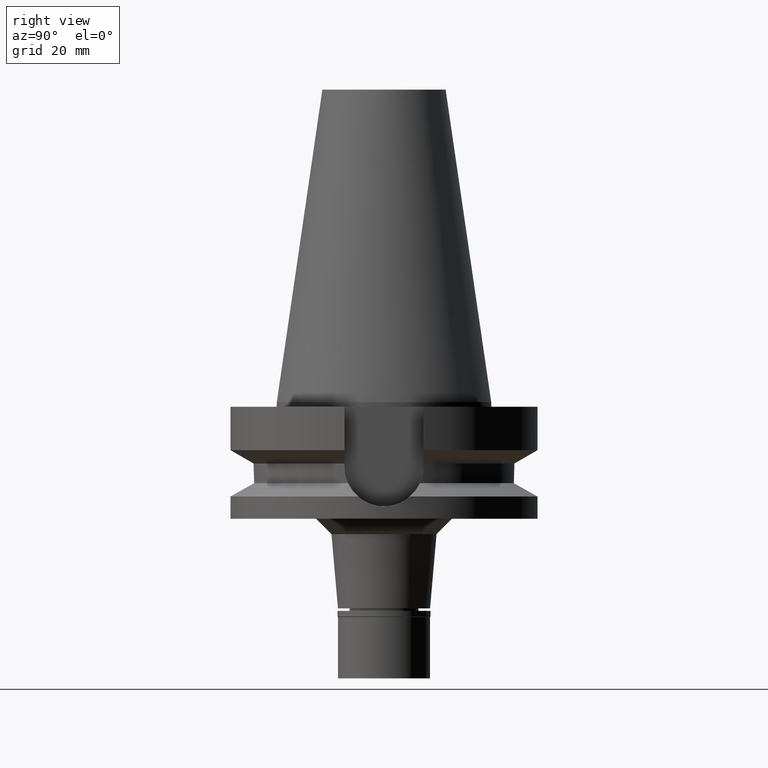
[diagram: clean part render]
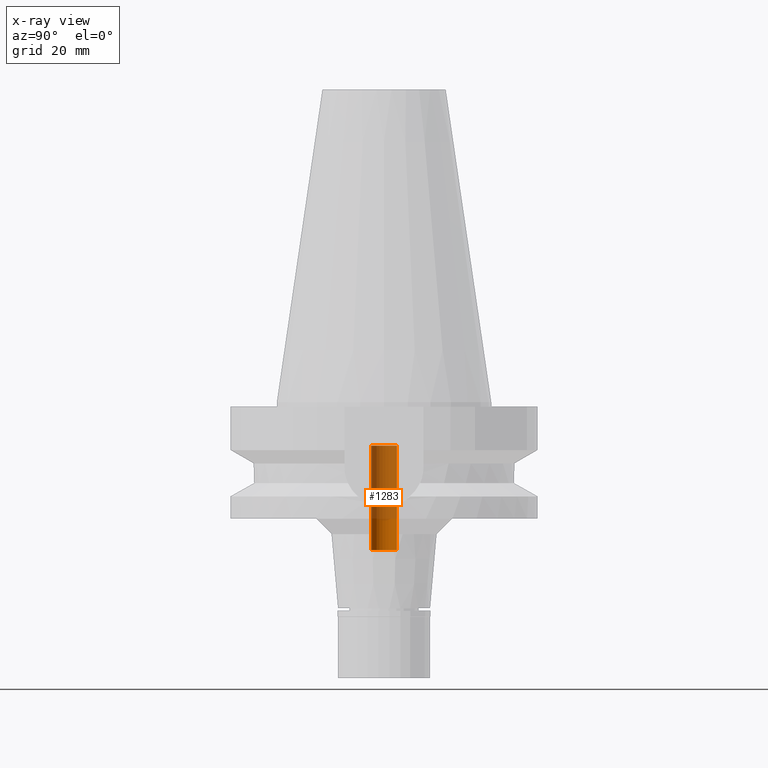
[diagram: x-ray — body ghosted, one internal face saturated and labeled with its STEP entity id]
A machine part, right view, then the same camera in x-ray: the body is ghosted and one INTERNAL B-rep face — a face not visible from any outside direction — is saturated and labeled: STEP entity #1283.
In plain terms, the highlighted cylindrical surface (edge-blend (fillet) strip) has radius 4.2 mm, axis along (0, 0, -1).
Its self-contained STEP definition (entity closure, byte-faithful):
#66 = CARTESIAN_POINT ( 'NONE',  ( 0.0000000000000000000, -4.200000000000000178, -48.30000000000000426 ) ) ;
#153 = VERTEX_POINT ( 'NONE', #1880 ) ;
#161 = DIRECTION ( 'NONE',  ( 0.0000000000000000000, 0.0000000000000000000, 1.000000000000000000 ) ) ;
#193 = EDGE_CURVE ( 'NONE', #153, #844, #195, .T. ) ;
#195 = LINE ( 'NONE', #1923, #3160 ) ;
#329 = CARTESIAN_POINT ( 'NONE',  ( 0.0000000000000000000, 2.584678301939999885E-14, -48.30000000000000426 ) ) ;
#346 = CARTESIAN_POINT ( 'NONE',  ( 0.0000000000000000000, -4.200000000000000178, -48.30000000000000426 ) ) ;
#444 = VECTOR ( 'NONE', #553, 1000.000000000000000 ) ;
#476 = CYLINDRICAL_SURFACE ( 'NONE', #1214, 4.200000000000000178 ) ;
#504 = EDGE_CURVE ( 'NONE', #1760, #2092, #1555, .T. ) ;
#553 = DIRECTION ( 'NONE',  ( 0.0000000000000000000, 0.0000000000000000000, 1.000000000000000000 ) ) ;
#767 = CARTESIAN_POINT ( 'NONE',  ( 0.0000000000000000000, 2.584678301939999885E-14, -14.20000000000000107 ) ) ;
#822 = DIRECTION ( 'NONE',  ( 0.0000000000000000000, 0.0000000000000000000, 1.000000000000000000 ) ) ;
#844 = VERTEX_POINT ( 'NONE', #2159 ) ;
#1107 = ORIENTED_EDGE ( 'NONE', *, *, #1865, .T. ) ;
#1172 = CIRCLE ( 'NONE', #1635, 4.200000000000000178 ) ;
#1214 = AXIS2_PLACEMENT_3D ( 'NONE', #2520, #1483, #1291 ) ;
#1283 = ADVANCED_FACE ( 'NONE', ( #2930 ), #476, .F. ) ;
#1291 = DIRECTION ( 'NONE',  ( 0.0000000000000000000, -1.000000000000000000, 0.0000000000000000000 ) ) ;
#1483 = DIRECTION ( 'NONE',  ( 0.0000000000000000000, 0.0000000000000000000, -1.000000000000000000 ) ) ;
#1504 = DIRECTION ( 'NONE',  ( 0.0000000000000000000, 0.0000000000000000000, -1.000000000000000000 ) ) ;
#1505 = ORIENTED_EDGE ( 'NONE', *, *, #1868, .T. ) ;
#1555 = LINE ( 'NONE', #346, #444 ) ;
#1635 = AXIS2_PLACEMENT_3D ( 'NONE', #767, #822, #1752 ) ;
#1752 = DIRECTION ( 'NONE',  ( 0.0000000000000000000, 1.000000000000000000, 0.0000000000000000000 ) ) ;
#1760 = VERTEX_POINT ( 'NONE', #66 ) ;
#1865 = EDGE_CURVE ( 'NONE', #844, #2092, #1172, .T. ) ;
#1868 = EDGE_CURVE ( 'NONE', #1760, #153, #2869, .T. ) ;
#1880 = CARTESIAN_POINT ( 'NONE',  ( 0.0000000000000000000, 4.200000000000000178, -48.30000000000000426 ) ) ;
#1923 = CARTESIAN_POINT ( 'NONE',  ( 0.0000000000000000000, 4.200000000000000178, -48.30000000000000426 ) ) ;
#2092 = VERTEX_POINT ( 'NONE', #2865 ) ;
#2159 = CARTESIAN_POINT ( 'NONE',  ( 0.0000000000000000000, 4.200000000000000178, -14.20000000000000107 ) ) ;
#2491 = DIRECTION ( 'NONE',  ( 0.0000000000000000000, -1.000000000000000000, 0.0000000000000000000 ) ) ;
#2520 = CARTESIAN_POINT ( 'NONE',  ( 0.0000000000000000000, 2.584678301939999885E-14, 111.0550000000000068 ) ) ;
#2559 = AXIS2_PLACEMENT_3D ( 'NONE', #329, #1504, #2491 ) ;
#2865 = CARTESIAN_POINT ( 'NONE',  ( 0.0000000000000000000, -4.200000000000000178, -14.20000000000000107 ) ) ;
#2869 = CIRCLE ( 'NONE', #2559, 4.200000000000000178 ) ;
#2930 = FACE_OUTER_BOUND ( 'NONE', #3091, .T. ) ;
#2978 = ORIENTED_EDGE ( 'NONE', *, *, #193, .T. ) ;
#3014 = ORIENTED_EDGE ( 'NONE', *, *, #504, .F. ) ;
#3091 = EDGE_LOOP ( 'NONE', ( #1107, #3014, #1505, #2978 ) ) ;
#3160 = VECTOR ( 'NONE', #161, 1000.000000000000000 ) ;